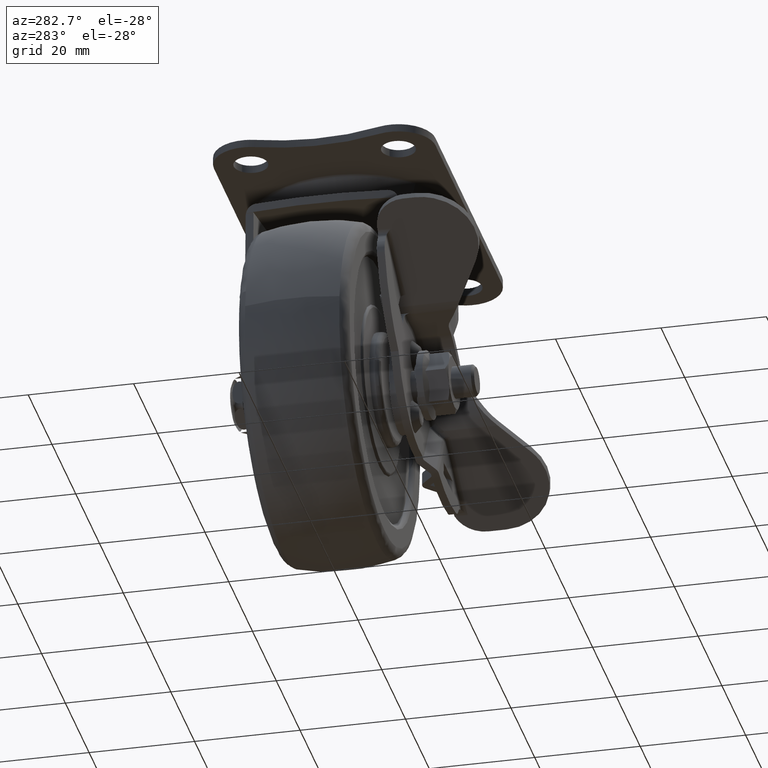
[diagram: clean part render]
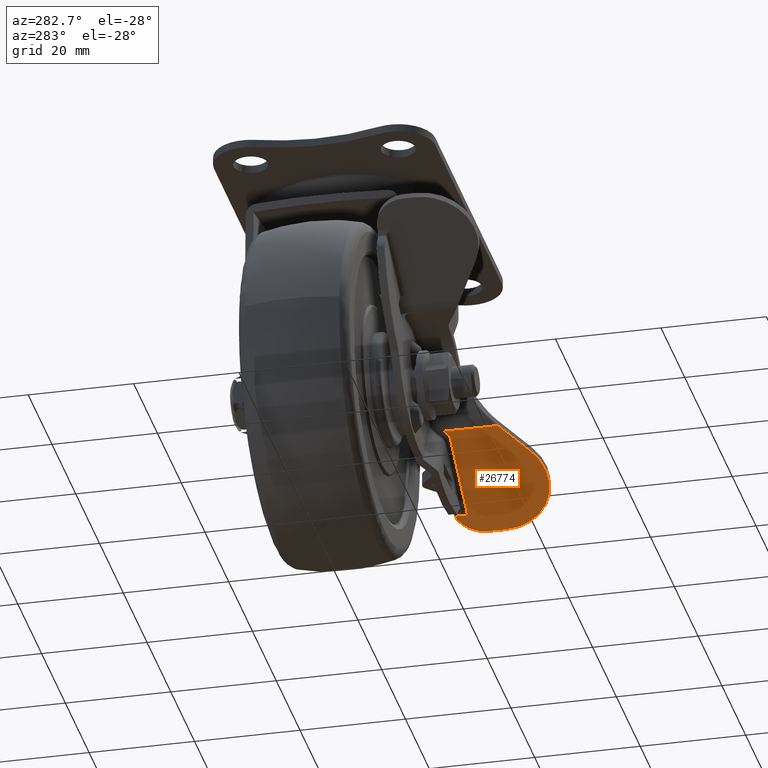
[diagram: same view with one face highlighted and labeled with its STEP entity id]
A machine part, auxiliary view. The second image highlights one B-rep face of the part: STEP entity #26774.
In plain terms, the highlighted face is a freeform B-spline surface patch.
Its self-contained STEP definition (entity closure, byte-faithful):
#24380=CARTESIAN_POINT('',(-5.918414960625330,-19.200001000000000,-32.500014644274252));
#24381=VERTEX_POINT('',#24380);
#24539=CARTESIAN_POINT('',(11.500013510260480,-19.200000999999951,-32.500047763158904));
#24540=VERTEX_POINT('',#24539);
#24541=CARTESIAN_POINT('',(-5.918414960625330,-19.200001000000000,-32.500014644274252));
#24542=CARTESIAN_POINT('',(11.500013510260480,-19.200000999999951,-32.500047763158904));
#24543=QUASI_UNIFORM_CURVE('',1,(#24541,#24542),.UNSPECIFIED.,.F.,.U.);
#24544=EDGE_CURVE('',#24381,#24540,#24543,.T.);
#24608=CARTESIAN_POINT('',(-7.105331970996095,-18.329310061656479,-32.500012443523843));
#24609=VERTEX_POINT('',#24608);
#24610=CARTESIAN_POINT('',(-7.105331970996095,-18.329310061656479,-32.500012443523843));
#24611=CARTESIAN_POINT('',(-5.918414960625330,-19.200001000000000,-32.500014644274252));
#24612=QUASI_UNIFORM_CURVE('',1,(#24610,#24611),.UNSPECIFIED.,.F.,.U.);
#24613=EDGE_CURVE('',#24609,#24381,#24612,.T.);
#25447=CARTESIAN_POINT('',(11.500013510260480,-16.701606409871701,-32.500047763158904));
#25448=VERTEX_POINT('',#25447);
#25454=CARTESIAN_POINT('',(11.500013510260480,-19.200000999999951,-32.500047763158904));
#25455=CARTESIAN_POINT('',(11.500013510260480,-16.701606409871701,-32.500047763158904));
#25456=QUASI_UNIFORM_CURVE('',1,(#25454,#25455),.UNSPECIFIED.,.F.,.U.);
#25457=EDGE_CURVE('',#24540,#25448,#25456,.T.);
#25575=CARTESIAN_POINT('',(15.500001301542300,-22.354033037064251,-32.500055368617353));
#25576=VERTEX_POINT('',#25575);
#25582=CARTESIAN_POINT('',(11.500013510260480,-16.701606409871701,-32.500047763158904));
#25583=CARTESIAN_POINT('',(12.116650561253801,-16.918673711367809,-32.500048935614323));
#25584=CARTESIAN_POINT('',(13.038145562075920,-17.426150269049529,-32.500050687717710));
#25585=CARTESIAN_POINT('',(14.183504555990190,-18.520109420338031,-32.500052865469392));
#25586=CARTESIAN_POINT('',(14.818825872605039,-19.495388026657569,-32.500054073450528));
#25587=CARTESIAN_POINT('',(15.353819329008340,-20.816253055554839,-32.500055090671218));
#25588=CARTESIAN_POINT('',(15.500444850242300,-21.700292083502340,-32.500055369460682));
#25589=CARTESIAN_POINT('',(15.500001301542300,-22.354033037064251,-32.500055368617353));
#25590=B_SPLINE_CURVE_WITH_KNOTS('',3,(#25582,#25583,#25584,#25585,#25586,#25587,#25588,#25589),.UNSPECIFIED.,.F.,.U.,(4,1,1,1,1,4),(0.000000029317971,1.960998240285851,3.114531639960873,4.729462847731532,5.421582998724315,7.382581209692466),.UNSPECIFIED.);
#25591=EDGE_CURVE('',#25448,#25576,#25590,.T.);
#25616=CARTESIAN_POINT('',(-0.703148404698942,-33.593174927246757,-32.500024560427804));
#25617=VERTEX_POINT('',#25616);
#25623=CARTESIAN_POINT('',(15.500001301542300,-25.749646784761449,-32.500055368617353));
#25624=VERTEX_POINT('',#25623);
#25625=CARTESIAN_POINT('',(15.500001301542300,-25.749646784761449,-32.500055368617353));
#25626=CARTESIAN_POINT('',(15.500123797677970,-26.449630667993610,-32.500055368850177));
#25627=CARTESIAN_POINT('',(15.376964549972859,-27.616200660469421,-32.500055134678959));
#25628=CARTESIAN_POINT('',(14.867988084260659,-29.386449207800158,-32.500054166925928));
#25629=CARTESIAN_POINT('',(14.000002938041201,-31.180912888555429,-32.500052516565333));
#25630=CARTESIAN_POINT('',(12.598278768792680,-32.921125147254422,-32.500049851367059));
#25631=CARTESIAN_POINT('',(11.046852037477221,-34.126920278840608,-32.500046901531277));
#25632=CARTESIAN_POINT('',(9.555140209847316,-34.931349697004322,-32.500044065234640));
#25633=CARTESIAN_POINT('',(8.260600683954259,-35.397800678534693,-32.500041603834390));
#25634=CARTESIAN_POINT('',(6.686341326999999,-35.719324460164643,-32.500038610585129));
#25635=CARTESIAN_POINT('',(5.252264928348133,-35.788711284266981,-32.500035883875270));
#25636=CARTESIAN_POINT('',(3.683712578379517,-35.616763015139291,-32.500032901474263));
#25637=CARTESIAN_POINT('',(2.294398861734502,-35.263268282326180,-32.500030259876077));
#25638=CARTESIAN_POINT('',(0.760416997321227,-34.610588938113047,-32.500027343207087));
#25639=CARTESIAN_POINT('',(-0.199923563979832,-33.991249542370291,-32.500025517245803));
#25640=CARTESIAN_POINT('',(-0.703148404698942,-33.593174927246757,-32.500024560427804));
#25641=B_SPLINE_CURVE_WITH_KNOTS('',3,(#25625,#25626,#25627,#25628,#25629,#25630,#25631,#25632,#25633,#25634,#25635,#25636,#25637,#25638,#25639,#25640),.UNSPECIFIED.,.F.,.U.,(4,1,1,1,1,1,1,1,1,1,1,1,1,4),(0.000000215934222,2.099927911492792,3.499889047578460,5.512372327710484,8.049816151783380,10.149822263663459,11.374683174337941,13.124643584481531,14.262148871289471,16.187119926462181,17.412095344622330,18.987088066946189,20.474571686610449,22.399476788626970),.UNSPECIFIED.);
#25642=EDGE_CURVE('',#25624,#25617,#25641,.T.);
#26034=CARTESIAN_POINT('',(-7.105074998039130,-28.530133353933401,-32.500012387996698));
#26035=VERTEX_POINT('',#26034);
#26049=CARTESIAN_POINT('',(-7.105074998039130,-28.530133353933401,-32.500012387996698));
#26050=CARTESIAN_POINT('',(-0.703148404698942,-33.593174927246757,-32.500024560427804));
#26051=QUASI_UNIFORM_CURVE('',1,(#26049,#26050),.UNSPECIFIED.,.F.,.U.);
#26052=EDGE_CURVE('',#26035,#25617,#26051,.T.);
#26379=CARTESIAN_POINT('',(-7.105331970996095,-18.329310061656479,-32.500012443523843));
#26380=CARTESIAN_POINT('',(-7.105074998039130,-28.530133353933401,-32.500012387996698));
#26381=QUASI_UNIFORM_CURVE('',1,(#26379,#26380),.UNSPECIFIED.,.F.,.U.);
#26382=EDGE_CURVE('',#24609,#26035,#26381,.T.);
#26755=CARTESIAN_POINT('',(16.629137442489370,-36.701030591196940,-32.500057515523409));
#26756=CARTESIAN_POINT('',(-8.234468920372771,-36.701030591196940,-32.500010240597781));
#26757=CARTESIAN_POINT('',(16.629137442489370,-15.750160875474201,-32.500057515523409));
#26758=CARTESIAN_POINT('',(-8.234468920372771,-15.750160875474201,-32.500010240597781));
#26759=B_SPLINE_SURFACE_WITH_KNOTS('',1,1,((#26755,#26757),(#26756,#26758)),.UNSPECIFIED.,.F.,.F.,.U.,(2,2),(2,2),(0.0,24.863606362907088),(0.0,20.950869715722739),.UNSPECIFIED.);
#26760=ORIENTED_EDGE('',*,*,#24544,.T.);
#26761=ORIENTED_EDGE('',*,*,#25457,.T.);
#26762=ORIENTED_EDGE('',*,*,#25591,.T.);
#26763=CARTESIAN_POINT('',(15.500001301542300,-22.354033037064251,-32.500055368617353));
#26764=CARTESIAN_POINT('',(15.500001301542300,-25.749646784761449,-32.500055368617353));
#26765=QUASI_UNIFORM_CURVE('',1,(#26763,#26764),.UNSPECIFIED.,.F.,.U.);
#26766=EDGE_CURVE('',#25576,#25624,#26765,.T.);
#26767=ORIENTED_EDGE('',*,*,#26766,.T.);
#26768=ORIENTED_EDGE('',*,*,#25642,.T.);
#26769=ORIENTED_EDGE('',*,*,#26052,.F.);
#26770=ORIENTED_EDGE('',*,*,#26382,.F.);
#26771=ORIENTED_EDGE('',*,*,#24613,.T.);
#26772=EDGE_LOOP('',(#26760,#26761,#26762,#26767,#26768,#26769,#26770,#26771));
#26773=FACE_OUTER_BOUND('',#26772,.T.);
#26774=ADVANCED_FACE('',(#26773),#26759,.T.);